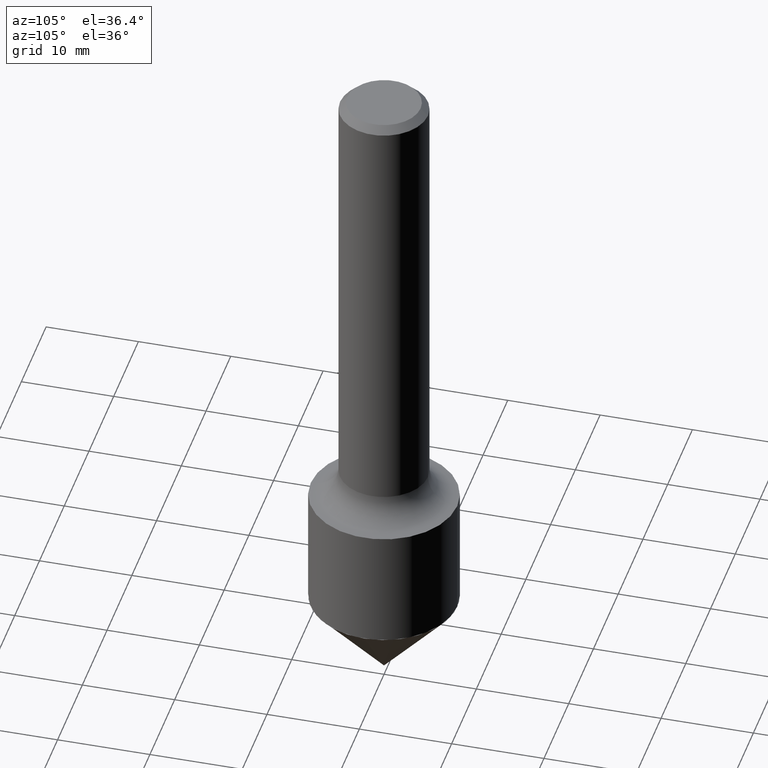
[diagram: clean part render]
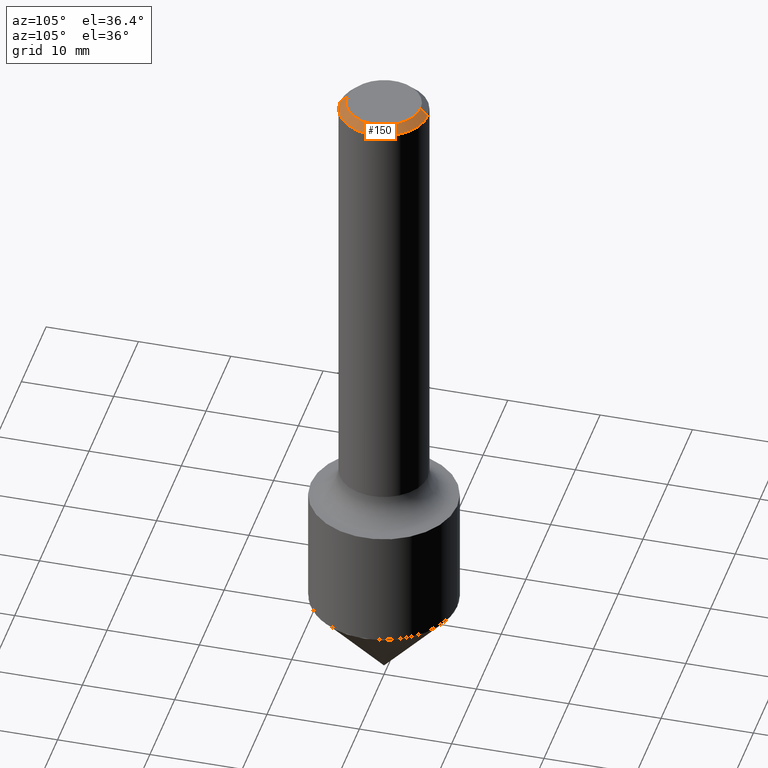
[diagram: same view with one face highlighted and labeled with its STEP entity id]
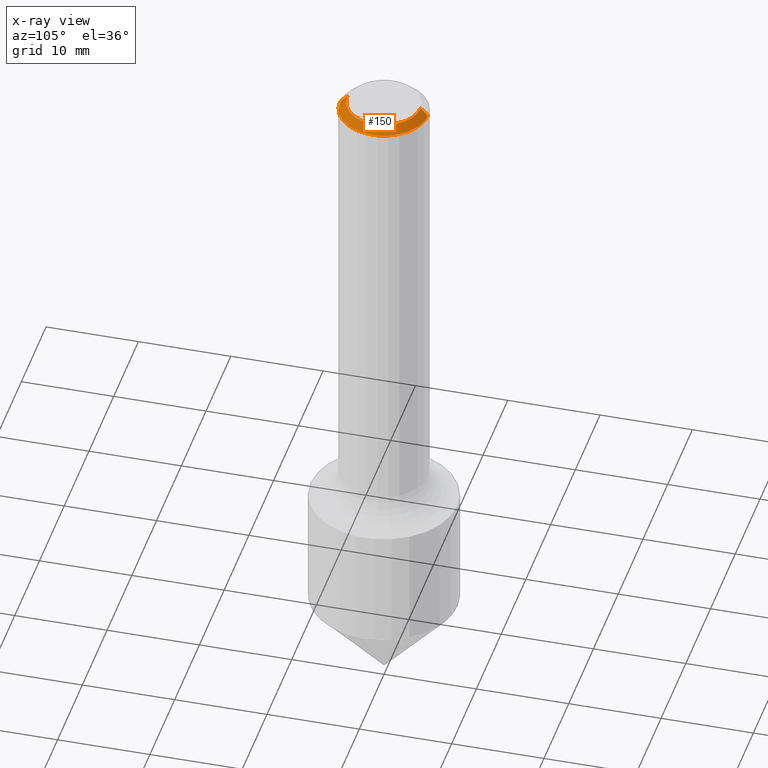
[diagram: x-ray of the same camera — body ghosted, the highlighted face saturated]
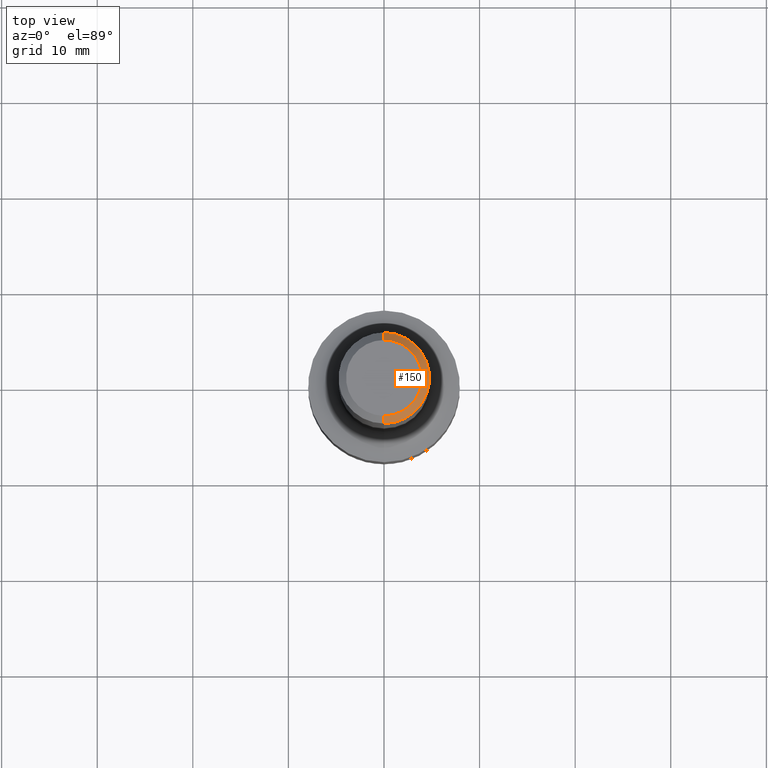
[diagram: same view with one face highlighted and labeled with its STEP entity id]
A machine part, auxiliary view. The second image highlights one B-rep face of the part: STEP entity #150.
The next image is the same camera in x-ray: the body ghosted, the highlighted face saturated — about 0% of this face is hidden behind the body in this view.
A second angle (top view) of the same face is appended — the face is thin or edge-on in the first view.
In plain terms, the highlighted conical surface has half-angle 45 deg.
Its self-contained STEP definition (entity closure, byte-faithful):
#13 = EDGE_CURVE ( 'NONE', #203, #107, #328, .T. ) ;
#16 = CARTESIAN_POINT ( 'NONE',  ( -1.179319605816925888E-15, -0.1563000000000000500, 5.620965447596539354E-16 ) ) ;
#20 = DIRECTION ( 'NONE',  ( -4.851104656540942976E-15, -0.7071067811865469066, -0.7071067811865481278 ) ) ;
#36 = EDGE_CURVE ( 'NONE', #107, #410, #476, .T. ) ;
#59 = DIRECTION ( 'NONE',  ( -2.425980914324989080E-29, 3.519389109168798508E-15, 1.000000000000000000 ) ) ;
#69 = CARTESIAN_POINT ( 'NONE',  ( -1.286343374582161379E-15, -0.1875000000000001110, -0.03119999999999956142 ) ) ;
#80 = AXIS2_PLACEMENT_3D ( 'NONE', #93, #323, #289 ) ;
#93 = CARTESIAN_POINT ( 'NONE',  ( 7.569060452694020354E-31, -1.098049402060672957E-16, -0.03120000000000022408 ) ) ;
#107 = VERTEX_POINT ( 'NONE', #282 ) ;
#109 = AXIS2_PLACEMENT_3D ( 'NONE', #401, #209, #357 ) ;
#122 = EDGE_CURVE ( 'NONE', #203, #416, #472, .T. ) ;
#131 = DIRECTION ( 'NONE',  ( 4.937700262164526743E-15, 0.7071067811865420216, -0.7071067811865530128 ) ) ;
#147 = ORIENTED_EDGE ( 'NONE', *, *, #122, .T. ) ;
#150 = ADVANCED_FACE ( 'NONE', ( #438 ), #295, .T. ) ;
#155 = VECTOR ( 'NONE', #131, 39.37007874015748143 ) ;
#176 = CARTESIAN_POINT ( 'NONE',  ( -1.286343374582161379E-15, -0.1875000000000001110, -0.03119999999999956142 ) ) ;
#178 = CARTESIAN_POINT ( 'NONE',  ( 1.309305502066175797E-15, 0.1874999999999999167, -0.03120000000000088675 ) ) ;
#203 = VERTEX_POINT ( 'NONE', #16 ) ;
#209 = DIRECTION ( 'NONE',  ( -2.425980914324989080E-29, 3.519389109168798508E-15, 1.000000000000000000 ) ) ;
#239 = CARTESIAN_POINT ( 'NONE',  ( 7.569060452694020354E-31, -1.098049402060672957E-16, -0.03120000000000022408 ) ) ;
#241 = DIRECTION ( 'NONE',  ( -6.982962677686265922E-15, -1.000000000000000000, 3.528636991816339448E-15 ) ) ;
#260 = EDGE_CURVE ( 'NONE', #416, #410, #377, .T. ) ;
#276 = ORIENTED_EDGE ( 'NONE', *, *, #36, .F. ) ;
#280 = AXIS2_PLACEMENT_3D ( 'NONE', #239, #59, #241 ) ;
#282 = CARTESIAN_POINT ( 'NONE',  ( 1.200371284294269833E-15, 0.1563000000000000500, -5.380644907665128611E-16 ) ) ;
#289 = DIRECTION ( 'NONE',  ( 6.982962677686265922E-15, 1.000000000000000000, -3.528636991816339448E-15 ) ) ;
#295 = CONICAL_SURFACE ( 'NONE', #80, 0.1875000000000000278, 0.7853981633974439491 ) ;
#304 = ORIENTED_EDGE ( 'NONE', *, *, #260, .T. ) ;
#323 = DIRECTION ( 'NONE',  ( 2.425980914324989080E-29, -3.519389109168798508E-15, -1.000000000000000000 ) ) ;
#328 = CIRCLE ( 'NONE', #109, 0.1563000000000000500 ) ;
#331 = CARTESIAN_POINT ( 'NONE',  ( 1.309305502066175797E-15, 0.1874999999999999167, -0.03120000000000088675 ) ) ;
#357 = DIRECTION ( 'NONE',  ( -6.982962677686265922E-15, -1.000000000000000000, 3.519389109168798508E-15 ) ) ;
#377 = CIRCLE ( 'NONE', #280, 0.1875000000000000278 ) ;
#383 = VECTOR ( 'NONE', #20, 39.37007874015748143 ) ;
#401 = CARTESIAN_POINT ( 'NONE',  ( -2.915065215969391447E-46, 4.228907454720856931E-32, 1.201602699657052482E-17 ) ) ;
#404 = ORIENTED_EDGE ( 'NONE', *, *, #13, .F. ) ;
#410 = VERTEX_POINT ( 'NONE', #331 ) ;
#416 = VERTEX_POINT ( 'NONE', #69 ) ;
#438 = FACE_OUTER_BOUND ( 'NONE', #450, .T. ) ;
#450 = EDGE_LOOP ( 'NONE', ( #404, #147, #304, #276 ) ) ;
#472 = LINE ( 'NONE', #176, #383 ) ;
#476 = LINE ( 'NONE', #178, #155 ) ;